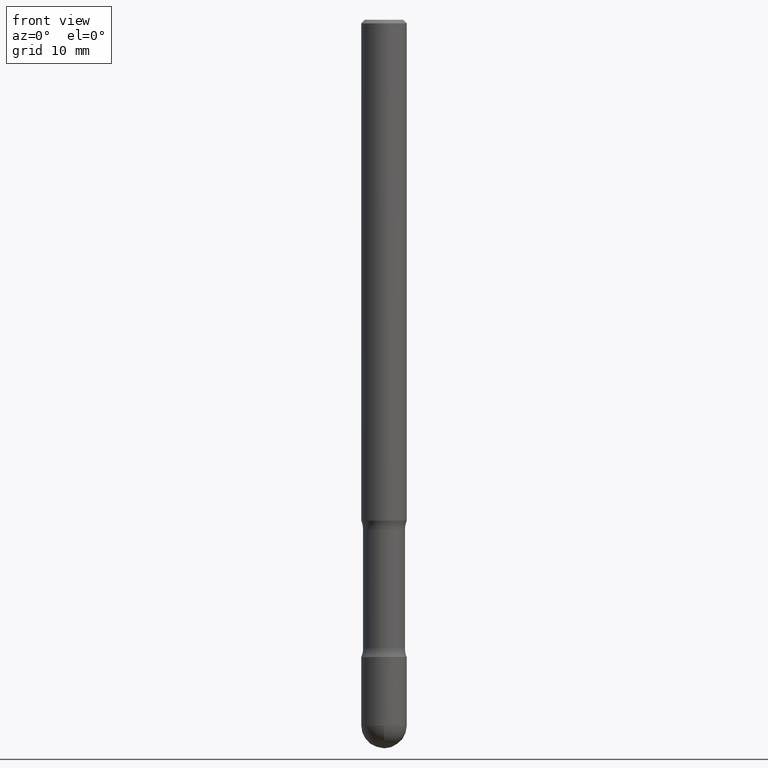
[diagram: clean part render]
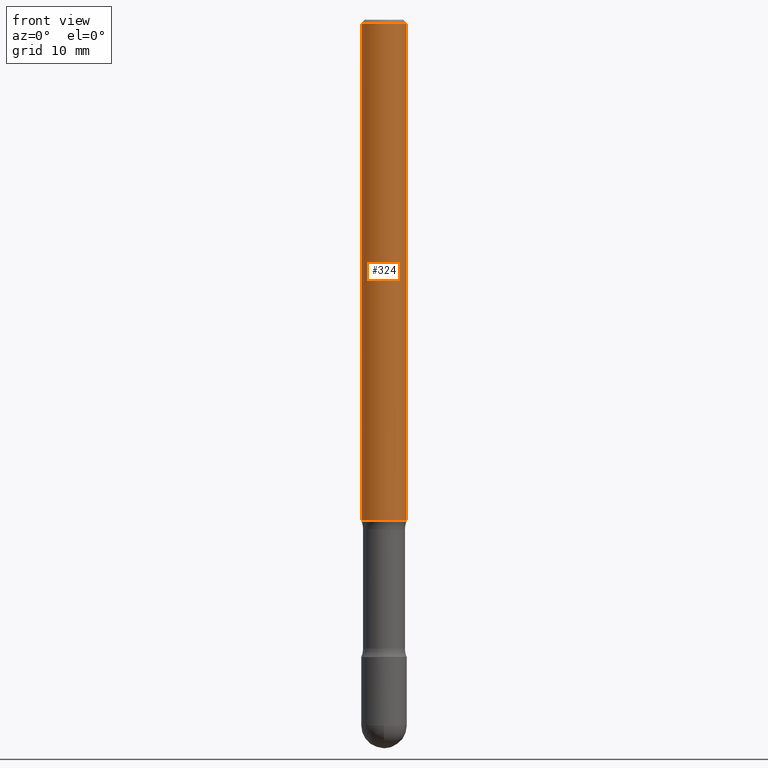
[diagram: same view with one face highlighted and labeled with its STEP entity id]
A machine part, front view. The second image highlights one B-rep face of the part: STEP entity #324.
In plain terms, the highlighted cylindrical surface (edge-blend (fillet) strip) has radius 3.175 mm, axis along (0, -0, -1).
Its self-contained STEP definition (entity closure, byte-faithful):
#18 = EDGE_LOOP ( 'NONE', ( #312, #45, #462, #76 ) ) ;
#33 = LINE ( 'NONE', #375, #96 ) ;
#36 = CARTESIAN_POINT ( 'NONE',  ( 0.1249999999999996947, -9.273918764983033630E-16, -0.02000000000000033348 ) ) ;
#40 = AXIS2_PLACEMENT_3D ( 'NONE', #511, #366, #483 ) ;
#45 = ORIENTED_EDGE ( 'NONE', *, *, #249, .T. ) ;
#53 = CARTESIAN_POINT ( 'NONE',  ( -0.1250000000000000278, -8.728703347107872831E-15, -2.750000000000001332 ) ) ;
#57 = VERTEX_POINT ( 'NONE', #36 ) ;
#68 = DIRECTION ( 'NONE',  ( 2.445468806185136877E-29, -3.491481338843145188E-15, -1.000000000000000000 ) ) ;
#75 = LINE ( 'NONE', #542, #368 ) ;
#76 = ORIENTED_EDGE ( 'NONE', *, *, #97, .F. ) ;
#78 = CIRCLE ( 'NONE', #40, 0.1249999999999996947 ) ;
#94 = DIRECTION ( 'NONE',  ( -1.000000000000000000, 6.982962677686269077E-15, 0.000000000000000000 ) ) ;
#96 = VECTOR ( 'NONE', #378, 39.37007874015748143 ) ;
#97 = EDGE_CURVE ( 'NONE', #107, #281, #103, .T. ) ;
#103 = CIRCLE ( 'NONE', #131, 0.1250000000000000278 ) ;
#106 = FACE_OUTER_BOUND ( 'NONE', #18, .T. ) ;
#107 = VERTEX_POINT ( 'NONE', #169 ) ;
#131 = AXIS2_PLACEMENT_3D ( 'NONE', #385, #263, #94 ) ;
#150 = CYLINDRICAL_SURFACE ( 'NONE', #487, 0.1249999999999998612 ) ;
#169 = CARTESIAN_POINT ( 'NONE',  ( 0.1250000000000000278, -5.693263904019194869E-15, -2.750000000000001332 ) ) ;
#238 = DIRECTION ( 'NONE',  ( 2.445468806185136597E-29, -3.491481338843145583E-15, -1.000000000000000000 ) ) ;
#249 = EDGE_CURVE ( 'NONE', #57, #450, #78, .T. ) ;
#263 = DIRECTION ( 'NONE',  ( 2.445468806185136597E-29, -3.491481338843145583E-15, -1.000000000000000000 ) ) ;
#281 = VERTEX_POINT ( 'NONE', #53 ) ;
#312 = ORIENTED_EDGE ( 'NONE', *, *, #460, .F. ) ;
#324 = ADVANCED_FACE ( 'NONE', ( #106 ), #150, .T. ) ;
#359 = DIRECTION ( 'NONE',  ( -1.000000000000000000, 6.982962677686270655E-15, 0.000000000000000000 ) ) ;
#366 = DIRECTION ( 'NONE',  ( 2.445468806185136597E-29, -3.491481338843145583E-15, -1.000000000000000000 ) ) ;
#368 = VECTOR ( 'NONE', #68, 39.37007874015748143 ) ;
#375 = CARTESIAN_POINT ( 'NONE',  ( 0.1249999999999998612, -1.307774693567244763E-14, -3.499999999999999112 ) ) ;
#378 = DIRECTION ( 'NONE',  ( 2.445468806185136877E-29, -3.491481338843145188E-15, -1.000000000000000000 ) ) ;
#385 = CARTESIAN_POINT ( 'NONE',  ( 6.725039217009129004E-29, -9.601573681818656170E-15, -2.750000000000001332 ) ) ;
#416 = EDGE_CURVE ( 'NONE', #450, #281, #75, .T. ) ;
#417 = CARTESIAN_POINT ( 'NONE',  ( -0.1249999999999996947, 8.030407079339170824E-16, -0.02000000000000033348 ) ) ;
#450 = VERTEX_POINT ( 'NONE', #417 ) ;
#460 = EDGE_CURVE ( 'NONE', #57, #107, #33, .T. ) ;
#462 = ORIENTED_EDGE ( 'NONE', *, *, #416, .T. ) ;
#483 = DIRECTION ( 'NONE',  ( -1.000000000000000000, 6.982962677686266711E-15, 0.000000000000000000 ) ) ;
#487 = AXIS2_PLACEMENT_3D ( 'NONE', #533, #238, #359 ) ;
#511 = CARTESIAN_POINT ( 'NONE',  ( 4.890937612370354609E-31, -6.982962677686407473E-17, -0.02000000000000033348 ) ) ;
#533 = CARTESIAN_POINT ( 'NONE',  ( 8.559140821647976968E-29, -1.222018468595100619E-14, -3.499999999999999112 ) ) ;
#542 = CARTESIAN_POINT ( 'NONE',  ( -0.1249999999999998612, -1.134731435124022443E-14, -3.499999999999999112 ) ) ;